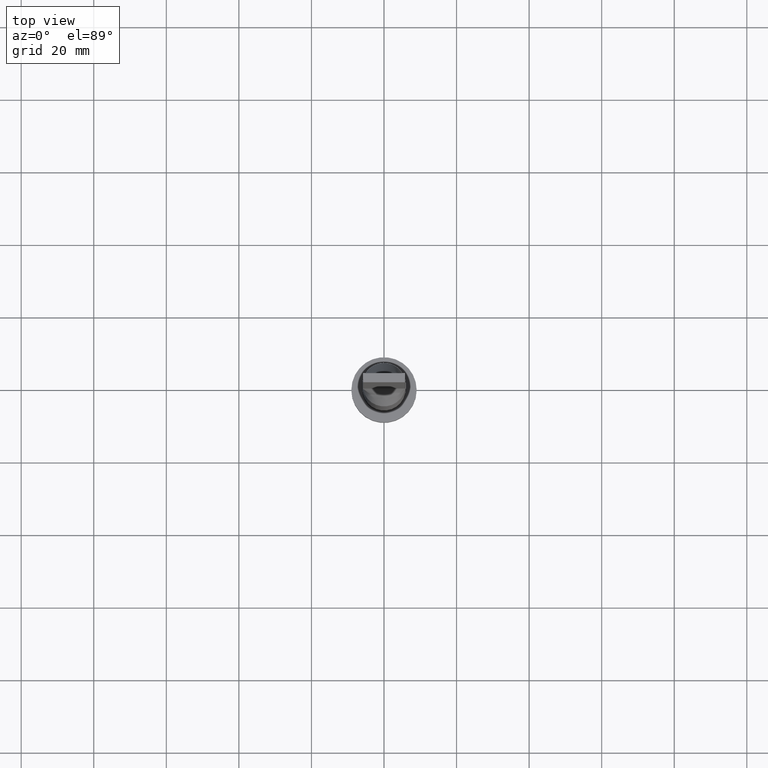
[diagram: clean part render]
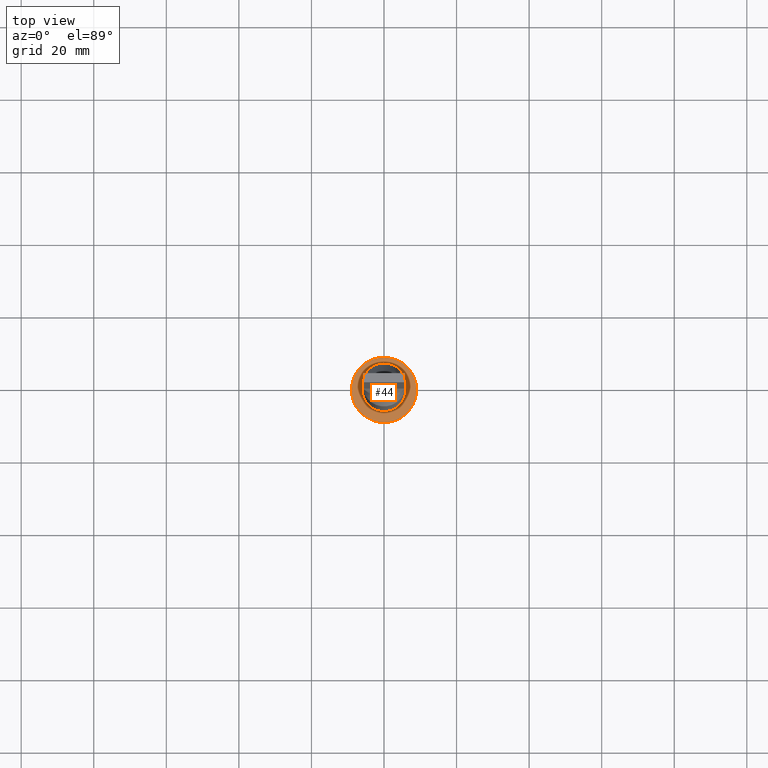
[diagram: same view with one face highlighted and labeled with its STEP entity id]
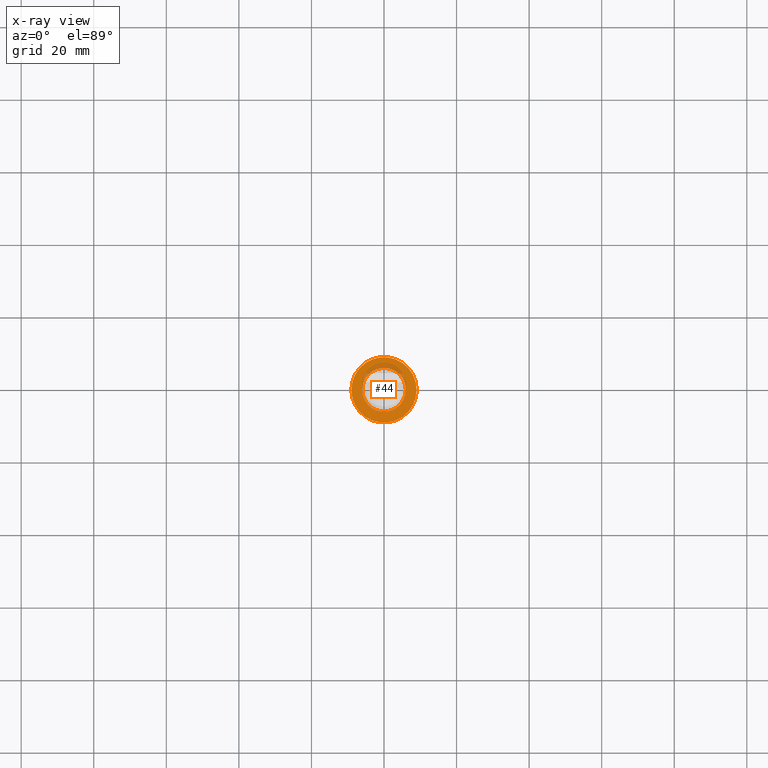
[diagram: x-ray of the same camera — body ghosted, the highlighted face saturated]
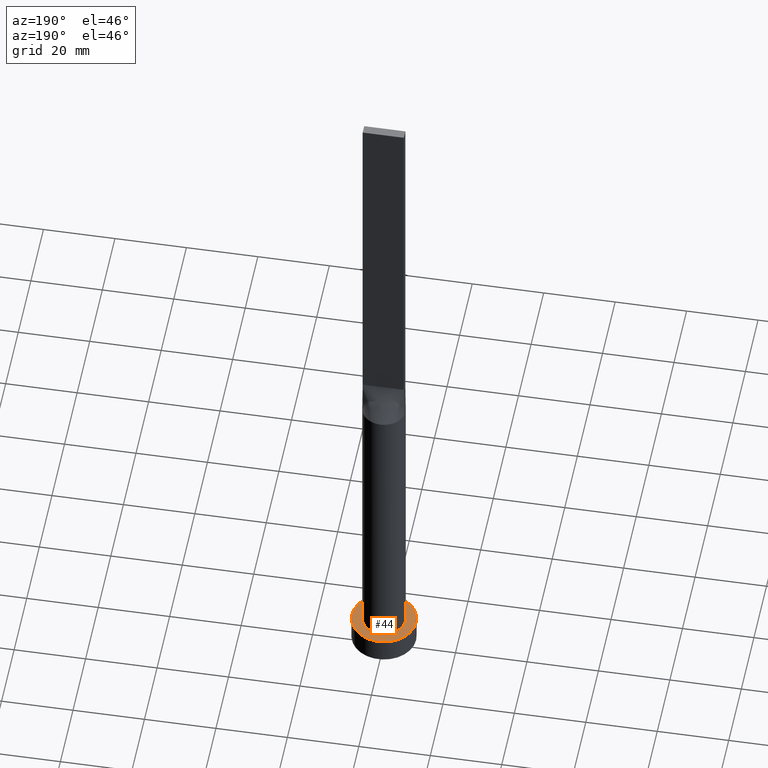
[diagram: same view with one face highlighted and labeled with its STEP entity id]
A machine part, top view. The second image highlights one B-rep face of the part: STEP entity #44.
The next image is the same camera in x-ray: the body ghosted, the highlighted face saturated — about 13% of this face is hidden behind the body in this view.
A second angle (auxiliary view) of the same face is appended — the face is thin or edge-on in the first view.
In plain terms, the highlighted planar face has unit normal (0, 0, 1).
Its self-contained STEP definition (entity closure, byte-faithful):
#5 = EDGE_CURVE ( 'NONE', #99, #77, #498, .T. ) ;
#12 = CIRCLE ( 'NONE', #380, 6.000000000000000888 ) ;
#41 = DIRECTION ( 'NONE',  ( 1.000000000000000000, 0.000000000000000000, 0.000000000000000000 ) ) ;
#44 = ADVANCED_FACE ( 'NONE', ( #501, #90 ), #230, .T. ) ;
#45 = ORIENTED_EDGE ( 'NONE', *, *, #95, .F. ) ;
#56 = ORIENTED_EDGE ( 'NONE', *, *, #399, .F. ) ;
#77 = VERTEX_POINT ( 'NONE', #451 ) ;
#85 = AXIS2_PLACEMENT_3D ( 'NONE', #525, #297, #520 ) ;
#90 = FACE_OUTER_BOUND ( 'NONE', #186, .T. ) ;
#95 = EDGE_CURVE ( 'NONE', #218, #545, #12, .T. ) ;
#99 = VERTEX_POINT ( 'NONE', #310 ) ;
#129 = DIRECTION ( 'NONE',  ( 0.000000000000000000, 0.000000000000000000, 1.000000000000000000 ) ) ;
#137 = CARTESIAN_POINT ( 'NONE',  ( 0.000000000000000000, 0.000000000000000000, 7.000000000000000000 ) ) ;
#146 = ORIENTED_EDGE ( 'NONE', *, *, #284, .T. ) ;
#153 = AXIS2_PLACEMENT_3D ( 'NONE', #413, #191, #507 ) ;
#184 = DIRECTION ( 'NONE',  ( 1.000000000000000000, 0.000000000000000000, 0.000000000000000000 ) ) ;
#186 = EDGE_LOOP ( 'NONE', ( #427, #146 ) ) ;
#191 = DIRECTION ( 'NONE',  ( 0.000000000000000000, 0.000000000000000000, 1.000000000000000000 ) ) ;
#218 = VERTEX_POINT ( 'NONE', #321 ) ;
#230 = PLANE ( 'NONE',  #153 ) ;
#253 = AXIS2_PLACEMENT_3D ( 'NONE', #571, #505, #41 ) ;
#263 = CIRCLE ( 'NONE', #85, 9.000000000000000000 ) ;
#284 = EDGE_CURVE ( 'NONE', #77, #99, #263, .T. ) ;
#297 = DIRECTION ( 'NONE',  ( 0.000000000000000000, 0.000000000000000000, 1.000000000000000000 ) ) ;
#302 = CARTESIAN_POINT ( 'NONE',  ( 0.000000000000000000, 0.000000000000000000, 7.000000000000000000 ) ) ;
#310 = CARTESIAN_POINT ( 'NONE',  ( -9.000000000000000000, 0.000000000000000000, 7.000000000000000000 ) ) ;
#321 = CARTESIAN_POINT ( 'NONE',  ( 6.000000000000000888, 7.347880794884120722E-16, 7.000000000000000000 ) ) ;
#380 = AXIS2_PLACEMENT_3D ( 'NONE', #137, #129, #184 ) ;
#399 = EDGE_CURVE ( 'NONE', #545, #218, #567, .T. ) ;
#413 = CARTESIAN_POINT ( 'NONE',  ( 0.000000000000000000, 0.000000000000000000, 7.000000000000000000 ) ) ;
#427 = ORIENTED_EDGE ( 'NONE', *, *, #5, .T. ) ;
#451 = CARTESIAN_POINT ( 'NONE',  ( 9.000000000000000000, 1.102182119232617714E-15, 7.000000000000000000 ) ) ;
#473 = DIRECTION ( 'NONE',  ( 1.000000000000000000, 0.000000000000000000, 0.000000000000000000 ) ) ;
#483 = DIRECTION ( 'NONE',  ( 0.000000000000000000, 0.000000000000000000, 1.000000000000000000 ) ) ;
#498 = CIRCLE ( 'NONE', #253, 9.000000000000000000 ) ;
#500 = EDGE_LOOP ( 'NONE', ( #56, #45 ) ) ;
#501 = FACE_BOUND ( 'NONE', #500, .T. ) ;
#502 = CARTESIAN_POINT ( 'NONE',  ( -6.000000000000000888, 0.000000000000000000, 7.000000000000000000 ) ) ;
#505 = DIRECTION ( 'NONE',  ( 0.000000000000000000, 0.000000000000000000, 1.000000000000000000 ) ) ;
#507 = DIRECTION ( 'NONE',  ( 1.000000000000000000, 0.000000000000000000, -0.000000000000000000 ) ) ;
#520 = DIRECTION ( 'NONE',  ( 1.000000000000000000, 0.000000000000000000, 0.000000000000000000 ) ) ;
#525 = CARTESIAN_POINT ( 'NONE',  ( 0.000000000000000000, 0.000000000000000000, 7.000000000000000000 ) ) ;
#545 = VERTEX_POINT ( 'NONE', #502 ) ;
#551 = AXIS2_PLACEMENT_3D ( 'NONE', #302, #483, #473 ) ;
#567 = CIRCLE ( 'NONE', #551, 6.000000000000000888 ) ;
#571 = CARTESIAN_POINT ( 'NONE',  ( 0.000000000000000000, 0.000000000000000000, 7.000000000000000000 ) ) ;